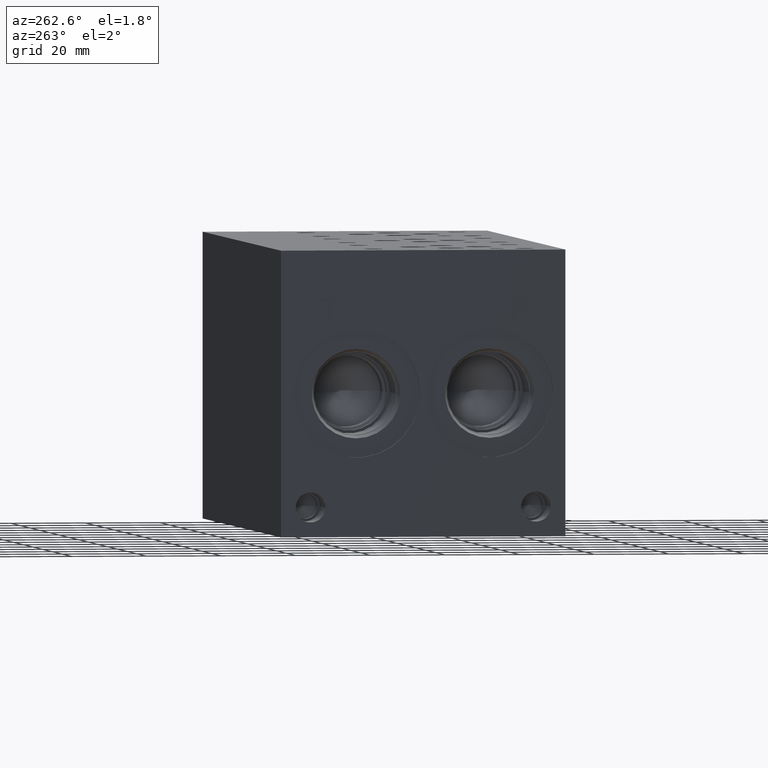
[diagram: clean part render]
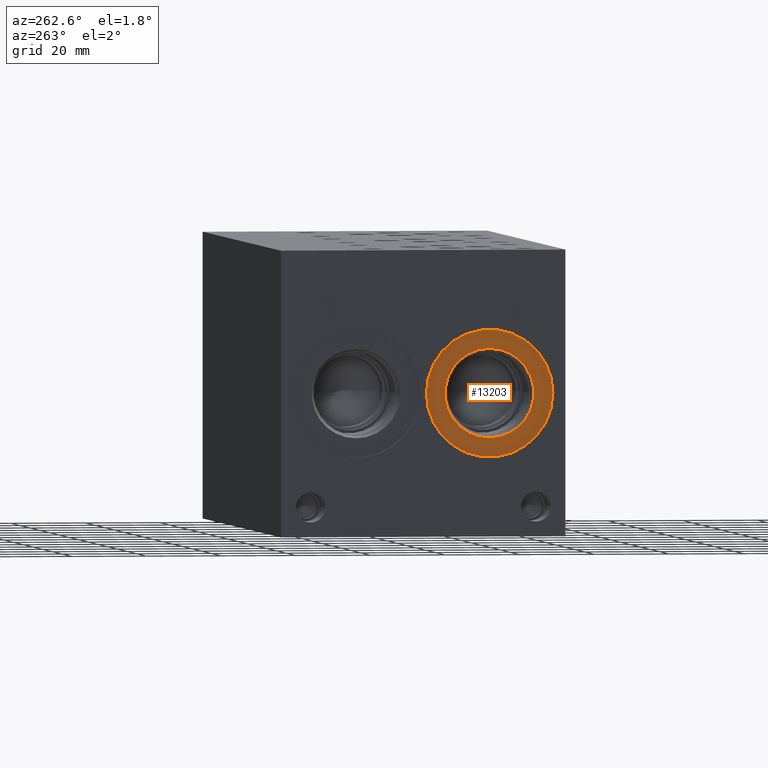
[diagram: same view with one face highlighted and labeled with its STEP entity id]
A machine part, auxiliary view. The second image highlights one B-rep face of the part: STEP entity #13203.
In plain terms, the highlighted planar face has unit normal (-1, 0, 0).
Its self-contained STEP definition (entity closure, byte-faithful):
#260=CIRCLE('',#13816,11.8999);
#261=CIRCLE('',#13817,11.8999);
#294=CIRCLE('',#13870,16.9926);
#295=CIRCLE('',#13871,16.9926);
#601=FACE_BOUND('',#2333,.T.);
#995=PLANE('',#13872);
#1571=FACE_OUTER_BOUND('',#2332,.T.);
#2332=EDGE_LOOP('',(#11289,#11290));
#2333=EDGE_LOOP('',(#11291,#11292));
#6185=VERTEX_POINT('',#22178);
#6186=VERTEX_POINT('',#22179);
#6221=VERTEX_POINT('',#22285);
#6222=VERTEX_POINT('',#22287);
#7934=EDGE_CURVE('',#6185,#6186,#260,.T.);
#7935=EDGE_CURVE('',#6186,#6185,#261,.T.);
#7986=EDGE_CURVE('',#6222,#6221,#294,.T.);
#7987=EDGE_CURVE('',#6221,#6222,#295,.T.);
#11289=ORIENTED_EDGE('',*,*,#7986,.T.);
#11290=ORIENTED_EDGE('',*,*,#7987,.T.);
#11291=ORIENTED_EDGE('',*,*,#7934,.T.);
#11292=ORIENTED_EDGE('',*,*,#7935,.T.);
#13203=ADVANCED_FACE('',(#1571,#601),#995,.T.);
#13816=AXIS2_PLACEMENT_3D('',#22180,#16211,#16212);
#13817=AXIS2_PLACEMENT_3D('',#22181,#16213,#16214);
#13870=AXIS2_PLACEMENT_3D('',#22288,#16337,#16338);
#13871=AXIS2_PLACEMENT_3D('',#22289,#16339,#16340);
#13872=AXIS2_PLACEMENT_3D('',#22290,#16341,#16342);
#16211=DIRECTION('center_axis',(1.,0.,0.));
#16212=DIRECTION('ref_axis',(0.,0.,1.));
#16213=DIRECTION('center_axis',(1.,0.,0.));
#16214=DIRECTION('ref_axis',(0.,0.,1.));
#16337=DIRECTION('center_axis',(-1.,0.,0.));
#16338=DIRECTION('ref_axis',(0.,1.,0.));
#16339=DIRECTION('center_axis',(-1.,0.,0.));
#16340=DIRECTION('ref_axis',(0.,1.,0.));
#16341=DIRECTION('center_axis',(-1.,0.,0.));
#16342=DIRECTION('ref_axis',(0.,1.,0.));
#22178=CARTESIAN_POINT('',(0.7874,20.2438,49.9999));
#22179=CARTESIAN_POINT('',(0.7874,20.2438,26.2001));
#22180=CARTESIAN_POINT('Origin',(0.7874,20.2438,38.1));
#22181=CARTESIAN_POINT('Origin',(0.7874,20.2438,38.1));
#22285=CARTESIAN_POINT('',(0.7874,3.2512,38.1));
#22287=CARTESIAN_POINT('',(0.7874,37.2364,38.1));
#22288=CARTESIAN_POINT('Origin',(0.7874,20.2438,38.1));
#22289=CARTESIAN_POINT('Origin',(0.7874,20.2438,38.1));
#22290=CARTESIAN_POINT('Origin',(0.7874,20.2438,38.1));